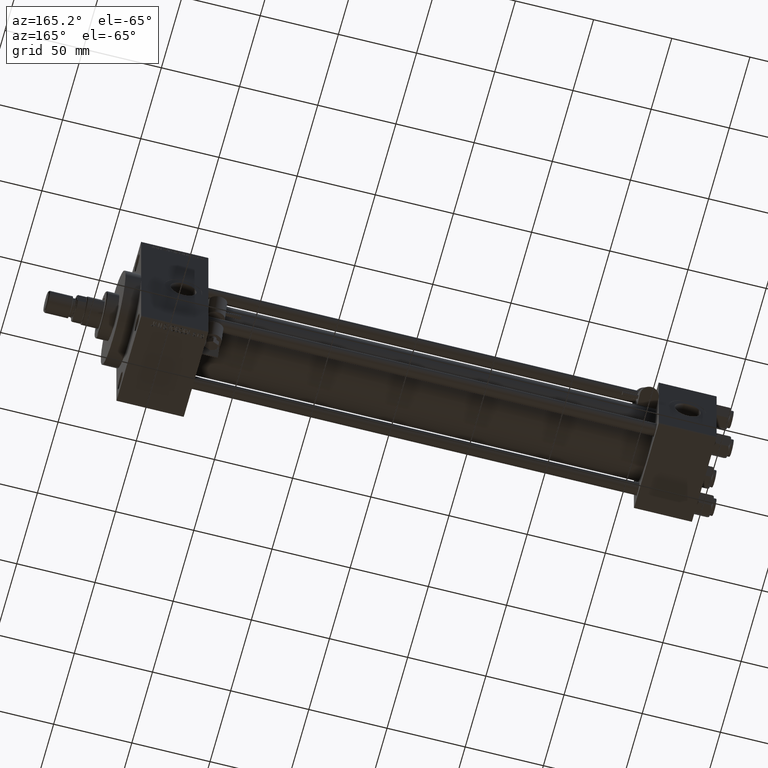
[diagram: clean part render]
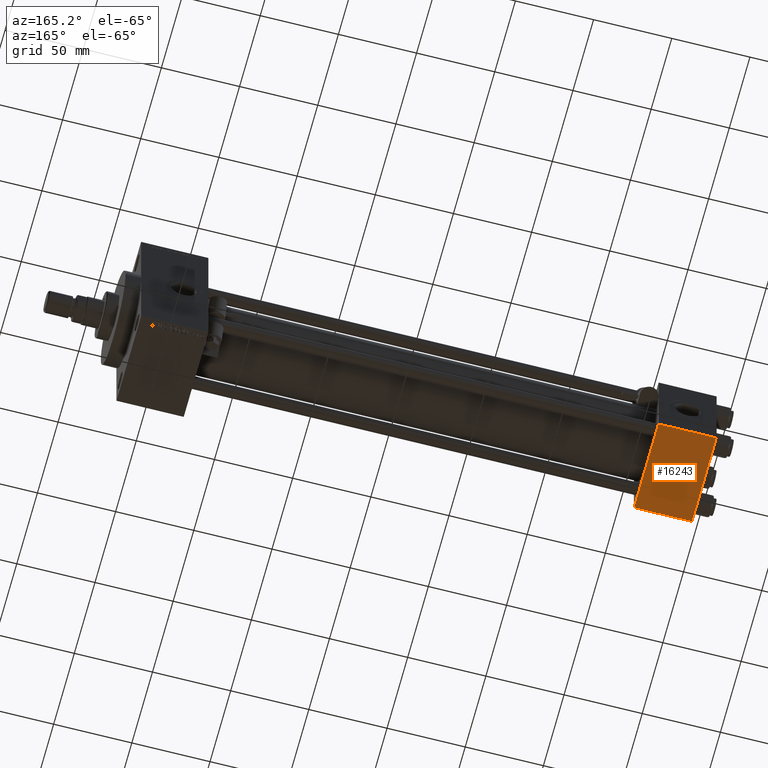
[diagram: same view with one face highlighted and labeled with its STEP entity id]
A machine part, auxiliary view. The second image highlights one B-rep face of the part: STEP entity #16243.
In plain terms, the highlighted planar face has unit normal (0, 0, -1).
Its self-contained STEP definition (entity closure, byte-faithful):
#1249 = VERTEX_POINT ( 'NONE', #41199 ) ;
#1450 = ORIENTED_EDGE ( 'NONE', *, *, #41647, .F. ) ;
#1669 = LINE ( 'NONE', #36383, #23002 ) ;
#2294 = ORIENTED_EDGE ( 'NONE', *, *, #6951, .T. ) ;
#2851 = PLANE ( 'NONE',  #7421 ) ;
#3393 = VECTOR ( 'NONE', #17396, 1000.000000000000000 ) ;
#5561 = CARTESIAN_POINT ( 'NONE',  ( 0.000000000000000000, 29.99999999999999289, -30.00000000000000000 ) ) ;
#6951 = EDGE_CURVE ( 'NONE', #43420, #1249, #39263, .T. ) ;
#7421 = AXIS2_PLACEMENT_3D ( 'NONE', #34479, #19060, #34216 ) ;
#8227 = VECTOR ( 'NONE', #43338, 1000.000000000000000 ) ;
#8404 = ORIENTED_EDGE ( 'NONE', *, *, #35549, .T. ) ;
#9125 = CARTESIAN_POINT ( 'NONE',  ( 37.00000000000000000, -29.50000000000000000, -30.00000000000000711 ) ) ;
#12236 = EDGE_CURVE ( 'NONE', #1249, #47642, #12887, .T. ) ;
#12887 = LINE ( 'NONE', #26671, #8227 ) ;
#16243 = ADVANCED_FACE ( 'NONE', ( #34987 ), #2851, .T. ) ;
#17396 = DIRECTION ( 'NONE',  ( 0.000000000000000000, -1.000000000000000000, -1.156482317317871725E-16 ) ) ;
#19060 = DIRECTION ( 'NONE',  ( 0.000000000000000000, 1.156482317317871725E-16, -1.000000000000000000 ) ) ;
#19511 = CARTESIAN_POINT ( 'NONE',  ( 0.000000000000000000, 29.49999999999997868, -30.00000000000000000 ) ) ;
#20719 = DIRECTION ( 'NONE',  ( -1.000000000000000000, 0.000000000000000000, 0.000000000000000000 ) ) ;
#23002 = VECTOR ( 'NONE', #20719, 1000.000000000000000 ) ;
#24956 = VERTEX_POINT ( 'NONE', #48073 ) ;
#26671 = CARTESIAN_POINT ( 'NONE',  ( 37.00000000000000000, 29.99999999999999289, -30.00000000000000000 ) ) ;
#27455 = DIRECTION ( 'NONE',  ( 1.000000000000000000, 0.000000000000000000, 0.000000000000000000 ) ) ;
#34216 = DIRECTION ( 'NONE',  ( 0.000000000000000000, 1.000000000000000000, 1.156482317317871725E-16 ) ) ;
#34479 = CARTESIAN_POINT ( 'NONE',  ( 37.00000000000000000, 29.99999999999999289, -30.00000000000000000 ) ) ;
#34987 = FACE_OUTER_BOUND ( 'NONE', #38942, .T. ) ;
#35549 = EDGE_CURVE ( 'NONE', #47642, #24956, #1669, .T. ) ;
#36383 = CARTESIAN_POINT ( 'NONE',  ( 0.000000000000000000, -29.50000000000001066, -30.00000000000000711 ) ) ;
#38942 = EDGE_LOOP ( 'NONE', ( #1450, #2294, #42589, #8404 ) ) ;
#39263 = LINE ( 'NONE', #46972, #43283 ) ;
#41199 = CARTESIAN_POINT ( 'NONE',  ( 37.00000000000000000, 29.49999999999997868, -30.00000000000000000 ) ) ;
#41647 = EDGE_CURVE ( 'NONE', #43420, #24956, #44623, .T. ) ;
#42589 = ORIENTED_EDGE ( 'NONE', *, *, #12236, .T. ) ;
#43283 = VECTOR ( 'NONE', #27455, 1000.000000000000000 ) ;
#43338 = DIRECTION ( 'NONE',  ( 0.000000000000000000, -1.000000000000000000, -1.156482317317871725E-16 ) ) ;
#43420 = VERTEX_POINT ( 'NONE', #19511 ) ;
#44623 = LINE ( 'NONE', #5561, #3393 ) ;
#46972 = CARTESIAN_POINT ( 'NONE',  ( 37.00000000000000000, 29.49999999999997868, -30.00000000000000000 ) ) ;
#47642 = VERTEX_POINT ( 'NONE', #9125 ) ;
#48073 = CARTESIAN_POINT ( 'NONE',  ( 0.000000000000000000, -29.50000000000000000, -30.00000000000000711 ) ) ;